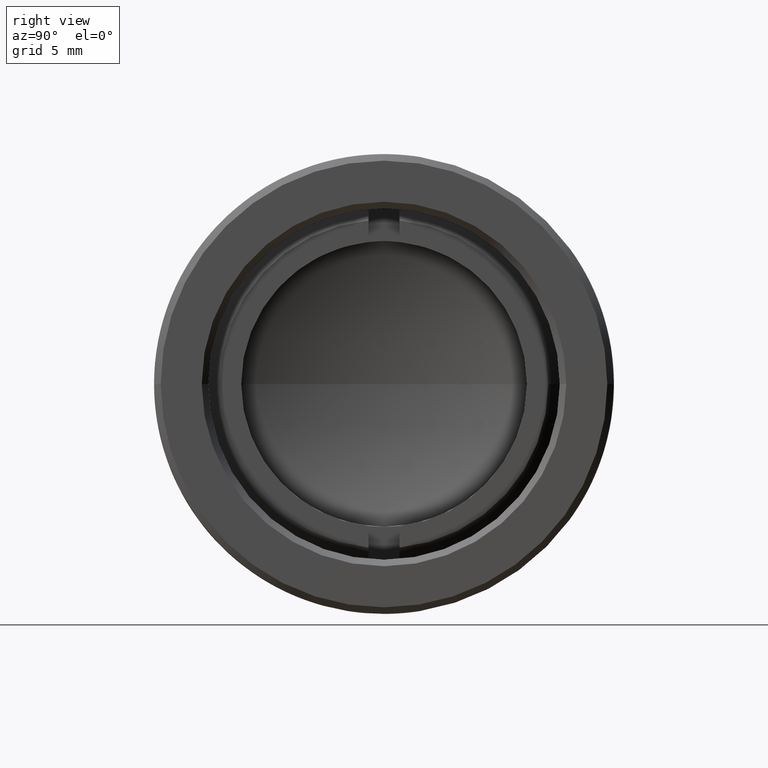
[diagram: clean part render]
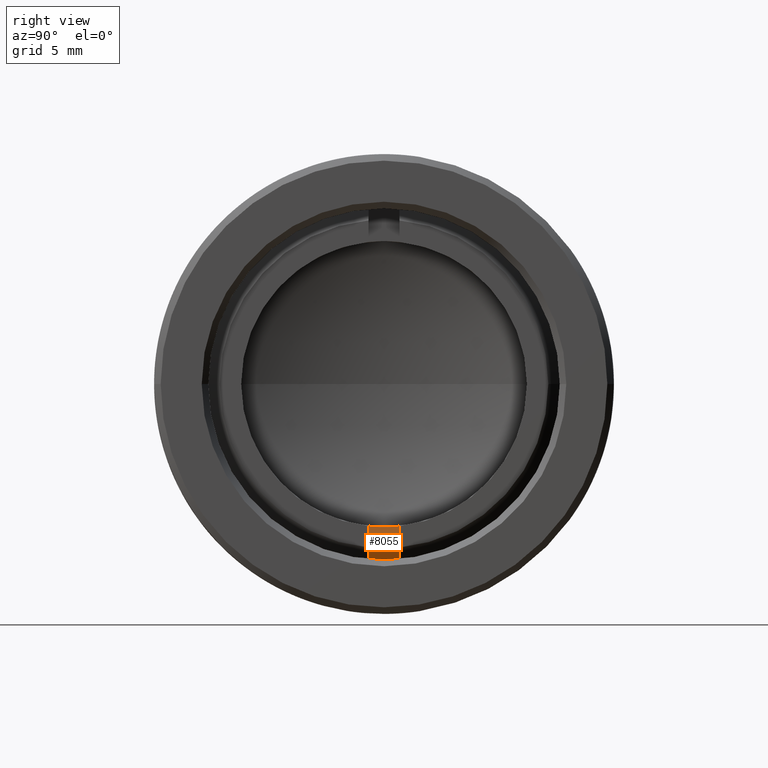
[diagram: same view with one face highlighted and labeled with its STEP entity id]
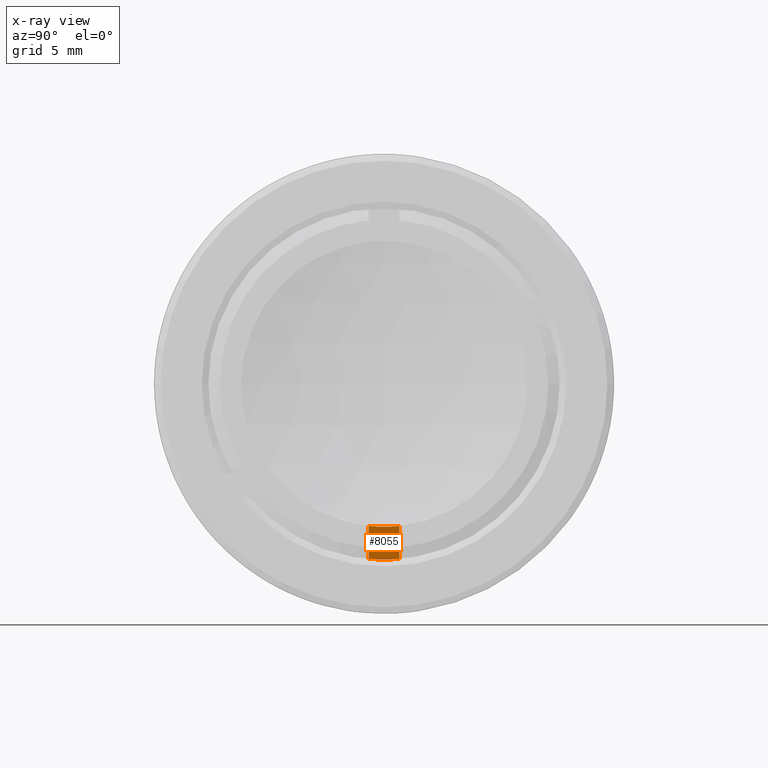
[diagram: x-ray of the same camera — body ghosted, the highlighted face saturated]
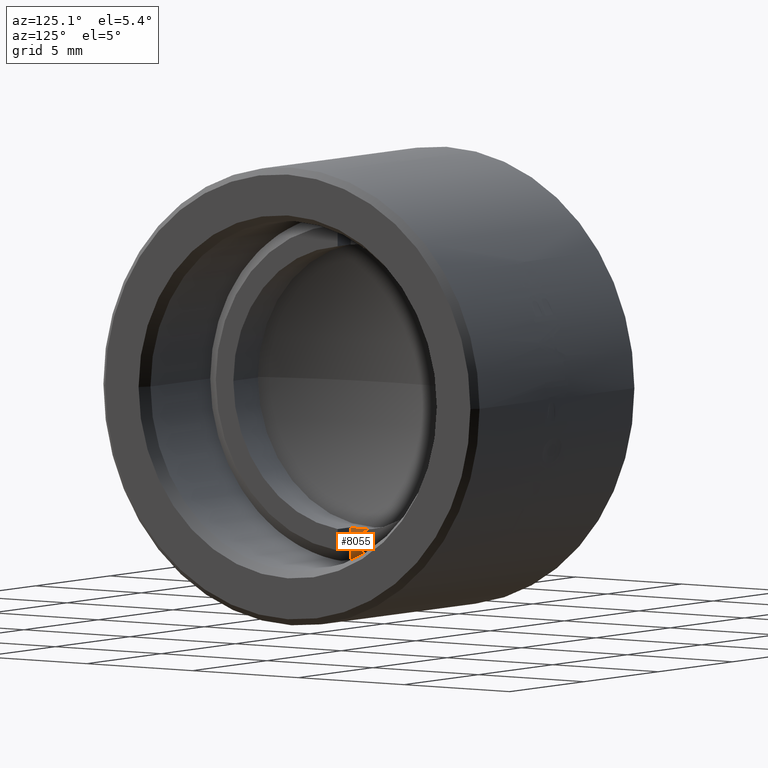
[diagram: same view with one face highlighted and labeled with its STEP entity id]
A machine part, right view. The second image highlights one B-rep face of the part: STEP entity #8055.
The next image is the same camera in x-ray: the body ghosted, the highlighted face saturated — about 1% of this face is hidden behind the body in this view.
A second angle (auxiliary view) of the same face is appended — the face is thin or edge-on in the first view.
In plain terms, the highlighted planar face has unit normal (1, 0, 0).
Its self-contained STEP definition (entity closure, byte-faithful):
#18 = CARTESIAN_POINT ( 'NONE',  ( 0.05445637855010204000, -0.02349999999999991700, -0.2162267328523464800 ) ) ;
#40 = DIRECTION ( 'NONE',  ( 3.510552328306879300E-016, -1.000000000000000000, -5.551115123125781500E-017 ) ) ;
#267 = CARTESIAN_POINT ( 'NONE',  ( 0.05445637855010203300, 0.02350000000000007300, -0.2664657576500216200 ) ) ;
#936 = DIRECTION ( 'NONE',  ( 3.361775527071162900E-016, -1.000000000000000000, -5.551115123125781500E-017 ) ) ;
#972 = AXIS2_PLACEMENT_3D ( 'NONE', #1189, #6556, #1959 ) ;
#1189 = CARTESIAN_POINT ( 'NONE',  ( 0.05445637855010203300, 6.208813513978281700E-017, -1.822288169741500000E-030 ) ) ;
#1409 = LINE ( 'NONE', #2159, #7073 ) ;
#1488 = AXIS2_PLACEMENT_3D ( 'NONE', #4741, #5521, #936 ) ;
#1860 = EDGE_LOOP ( 'NONE', ( #4365, #2893, #2344, #9365 ) ) ;
#1910 = VECTOR ( 'NONE', #7048, 39.37007874015748100 ) ;
#1959 = DIRECTION ( 'NONE',  ( 3.532562060772754400E-016, -1.000000000000000000, -5.551115123125782100E-017 ) ) ;
#2159 = CARTESIAN_POINT ( 'NONE',  ( 0.05445637855010203300, 0.02350000000000007300, -0.2664657576500216200 ) ) ;
#2237 = CIRCLE ( 'NONE', #3506, 0.2675000000000000700 ) ;
#2344 = ORIENTED_EDGE ( 'NONE', *, *, #2721, .T. ) ;
#2721 = EDGE_CURVE ( 'NONE', #7433, #9466, #4977, .T. ) ;
#2893 = ORIENTED_EDGE ( 'NONE', *, *, #9853, .T. ) ;
#2998 = EDGE_CURVE ( 'NONE', #6578, #5120, #2237, .T. ) ;
#3506 = AXIS2_PLACEMENT_3D ( 'NONE', #9276, #4643, #40 ) ;
#3977 = PLANE ( 'NONE',  #1488 ) ;
#4365 = ORIENTED_EDGE ( 'NONE', *, *, #2998, .T. ) ;
#4441 = CARTESIAN_POINT ( 'NONE',  ( 0.05445637855010204000, -0.02349999999999992000, -0.2664657576500216200 ) ) ;
#4643 = DIRECTION ( 'NONE',  ( 1.000000000000000000, 3.361775527071162900E-016, 1.004737734495143400E-030 ) ) ;
#4741 = CARTESIAN_POINT ( 'NONE',  ( 0.05445637855010203300, 6.208813513978281700E-017, -1.822288169741500000E-030 ) ) ;
#4977 = CIRCLE ( 'NONE', #972, 0.2175000000000000000 ) ;
#4981 = FACE_OUTER_BOUND ( 'NONE', #1860, .T. ) ;
#5120 = VERTEX_POINT ( 'NONE', #267 ) ;
#5521 = DIRECTION ( 'NONE',  ( 1.000000000000000000, 3.361775527071162900E-016, 1.004737734495143400E-030 ) ) ;
#5991 = LINE ( 'NONE', #6272, #1910 ) ;
#6272 = CARTESIAN_POINT ( 'NONE',  ( 0.05445637855010204000, -0.02349999999999992000, -0.2664657576500216200 ) ) ;
#6556 = DIRECTION ( 'NONE',  ( -1.000000000000000000, -3.361775527071162900E-016, -1.004737734495143400E-030 ) ) ;
#6578 = VERTEX_POINT ( 'NONE', #4441 ) ;
#6744 = EDGE_CURVE ( 'NONE', #9466, #6578, #5991, .T. ) ;
#7048 = DIRECTION ( 'NONE',  ( 9.289500989887812000E-031, 2.254393099600848700E-016, -1.000000000000000000 ) ) ;
#7073 = VECTOR ( 'NONE', #8256, 39.37007874015748100 ) ;
#7433 = VERTEX_POINT ( 'NONE', #7562 ) ;
#7562 = CARTESIAN_POINT ( 'NONE',  ( 0.05445637855010203300, 0.02350000000000008300, -0.2162267328523464500 ) ) ;
#8055 = ADVANCED_FACE ( 'NONE', ( #4981 ), #3977, .T. ) ;
#8256 = DIRECTION ( 'NONE',  ( -1.043202164063748000E-030, 1.144170074975692100E-016, 1.000000000000000000 ) ) ;
#9276 = CARTESIAN_POINT ( 'NONE',  ( 0.05445637855010203300, 6.208813513978281700E-017, -1.822288169741500000E-030 ) ) ;
#9365 = ORIENTED_EDGE ( 'NONE', *, *, #6744, .T. ) ;
#9466 = VERTEX_POINT ( 'NONE', #18 ) ;
#9853 = EDGE_CURVE ( 'NONE', #5120, #7433, #1409, .T. ) ;